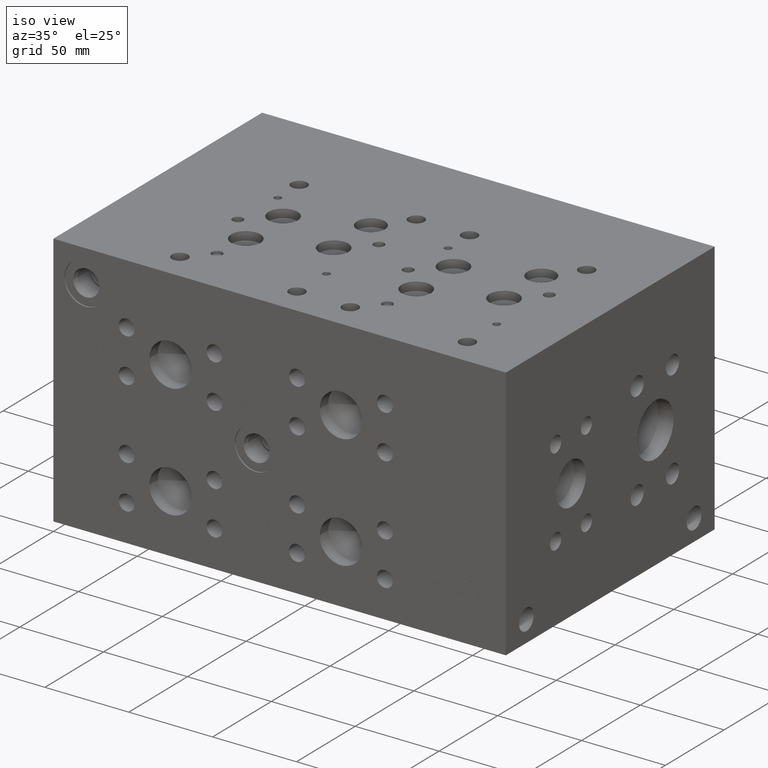
[diagram: clean part render]
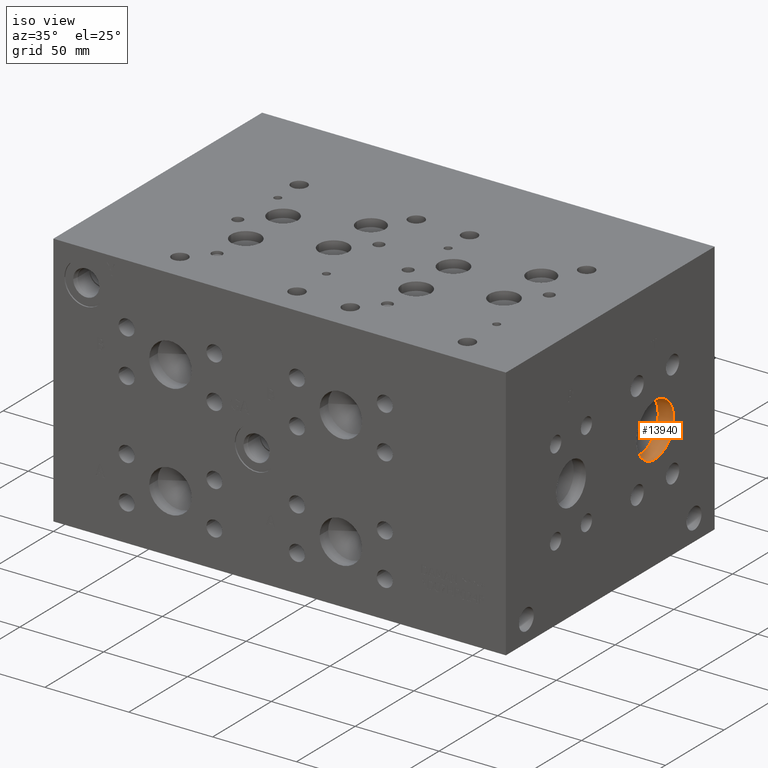
[diagram: same view with one face highlighted and labeled with its STEP entity id]
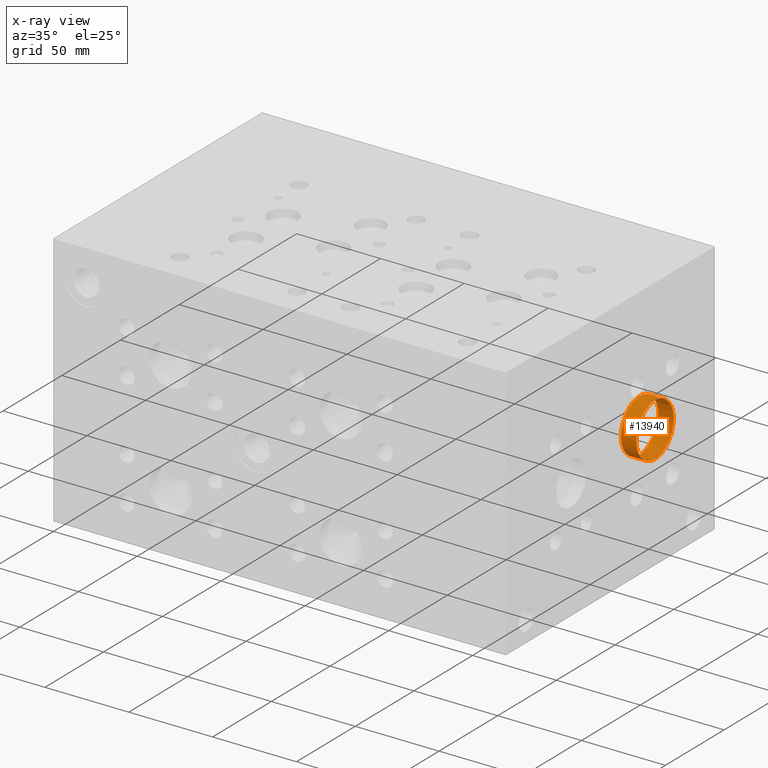
[diagram: x-ray of the same camera — body ghosted, the highlighted face saturated]
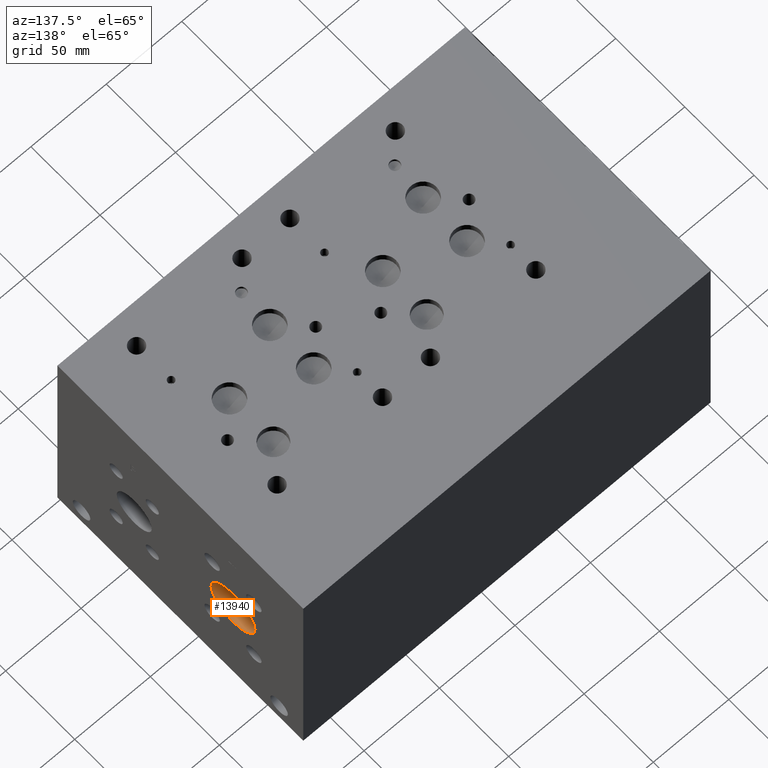
[diagram: same view with one face highlighted and labeled with its STEP entity id]
A machine part, iso view. The second image highlights one B-rep face of the part: STEP entity #13940.
The next image is the same camera in x-ray: the body ghosted, the highlighted face saturated — about 0% of this face is hidden behind the body in this view.
A second angle (auxiliary view) of the same face is appended — the face is thin or edge-on in the first view.
In plain terms, the highlighted cylindrical surface (bore or boss wall) has radius 15.875 mm, axis along (1, 0, 0).
Its self-contained STEP definition (entity closure, byte-faithful):
#35=CYLINDRICAL_SURFACE('',#14716,15.875);
#220=CIRCLE('',#14185,15.875);
#221=CIRCLE('',#14186,15.875);
#364=CIRCLE('',#14714,15.875);
#365=CIRCLE('',#14715,15.875);
#1775=FACE_OUTER_BOUND('',#2611,.T.);
#2611=EDGE_LOOP('',(#11775,#11776,#11777,#11778,#11779,#11780));
#3975=LINE('',#23161,#5225);
#5225=VECTOR('',#17414,15.875);
#5670=VERTEX_POINT('',#18872);
#5671=VERTEX_POINT('',#18873);
#6641=VERTEX_POINT('',#23154);
#6642=VERTEX_POINT('',#23155);
#7072=EDGE_CURVE('',#5670,#5671,#220,.T.);
#7073=EDGE_CURVE('',#5671,#5670,#221,.T.);
#8472=EDGE_CURVE('',#6641,#6642,#364,.T.);
#8474=EDGE_CURVE('',#6642,#6641,#365,.T.);
#8475=EDGE_CURVE('',#5671,#6642,#3975,.T.);
#11775=ORIENTED_EDGE('',*,*,#7072,.F.);
#11776=ORIENTED_EDGE('',*,*,#7073,.F.);
#11777=ORIENTED_EDGE('',*,*,#8475,.T.);
#11778=ORIENTED_EDGE('',*,*,#8472,.F.);
#11779=ORIENTED_EDGE('',*,*,#8474,.F.);
#11780=ORIENTED_EDGE('',*,*,#8475,.F.);
#13940=ADVANCED_FACE('',(#1775),#35,.F.);
#14185=AXIS2_PLACEMENT_3D('',#18874,#15311,#15312);
#14186=AXIS2_PLACEMENT_3D('',#18875,#15313,#15314);
#14714=AXIS2_PLACEMENT_3D('',#23156,#17407,#17408);
#14715=AXIS2_PLACEMENT_3D('',#23159,#17410,#17411);
#14716=AXIS2_PLACEMENT_3D('',#23160,#17412,#17413);
#15311=DIRECTION('center_axis',(-1.,0.,0.));
#15312=DIRECTION('ref_axis',(0.,1.,0.));
#15313=DIRECTION('center_axis',(-1.,0.,0.));
#15314=DIRECTION('ref_axis',(0.,1.,0.));
#17407=DIRECTION('center_axis',(1.,0.,0.));
#17408=DIRECTION('ref_axis',(0.,1.,0.));
#17410=DIRECTION('center_axis',(1.,0.,0.));
#17411=DIRECTION('ref_axis',(0.,1.,0.));
#17412=DIRECTION('center_axis',(1.,0.,0.));
#17413=DIRECTION('ref_axis',(0.,1.,0.));
#17414=DIRECTION('',(-1.,0.,0.));
#18872=CARTESIAN_POINT('',(269.875,142.875,73.025));
#18873=CARTESIAN_POINT('',(269.875,111.125,73.025));
#18874=CARTESIAN_POINT('Origin',(269.875,127.,73.025));
#18875=CARTESIAN_POINT('Origin',(269.875,127.,73.025));
#23154=CARTESIAN_POINT('',(260.70956,142.875,73.025));
#23155=CARTESIAN_POINT('',(260.70956,111.125,73.025));
#23156=CARTESIAN_POINT('Origin',(260.70956,127.,73.025));
#23159=CARTESIAN_POINT('Origin',(260.70956,127.,73.025));
#23160=CARTESIAN_POINT('Origin',(265.29228,127.,73.025));
#23161=CARTESIAN_POINT('',(265.29228,111.125,73.025));